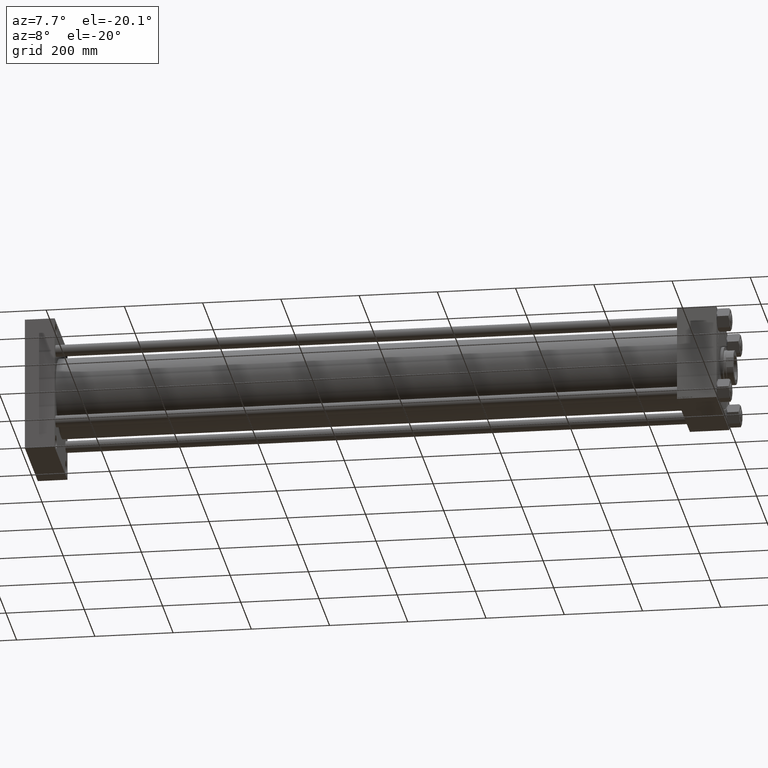
[diagram: clean part render]
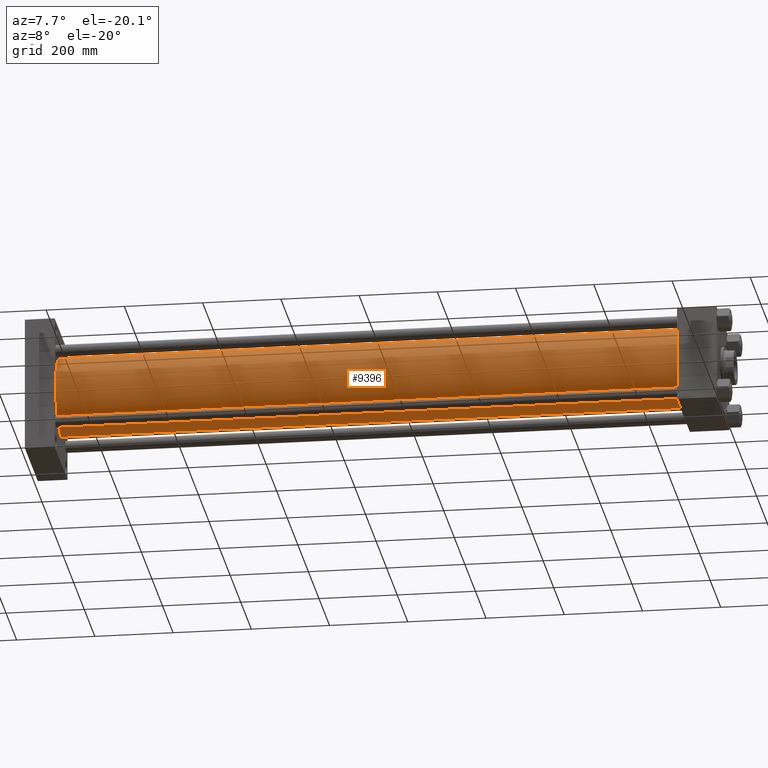
[diagram: same view with one face highlighted and labeled with its STEP entity id]
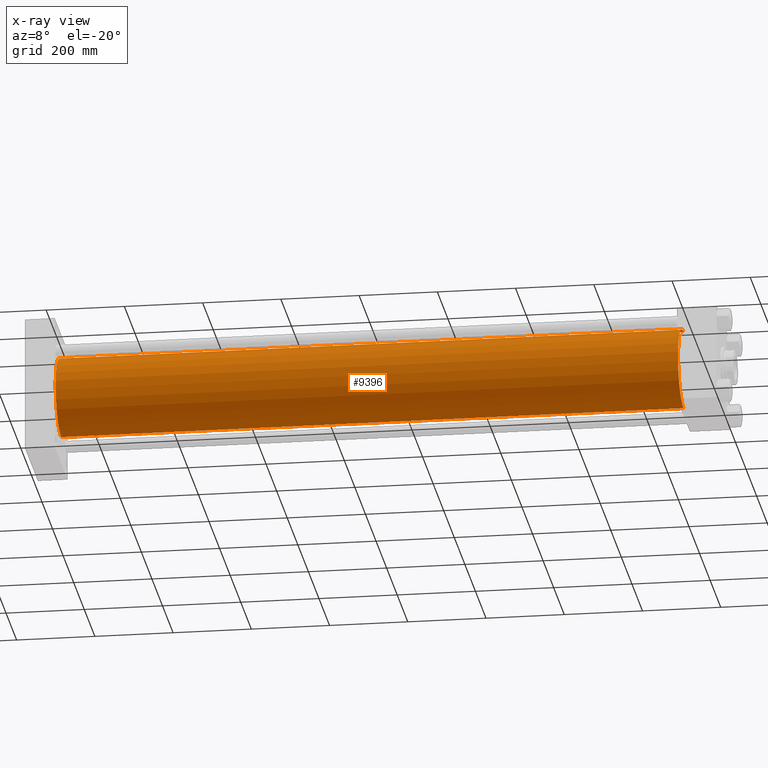
[diagram: x-ray of the same camera — body ghosted, the highlighted face saturated]
A machine part, auxiliary view. The second image highlights one B-rep face of the part: STEP entity #9396.
The next image is the same camera in x-ray: the body ghosted, the highlighted face saturated — about 0% of this face is hidden behind the body in this view.
In plain terms, the highlighted cylindrical surface (partial cylindrical patch) has radius 103 mm, axis along (-1, -0, -0).
Its self-contained STEP definition (entity closure, byte-faithful):
#1401 = CARTESIAN_POINT ( 'NONE',  ( 1667.000000000000000, 1.001177681725252697E-14, -103.0000000000000000 ) ) ;
#3063 = VERTEX_POINT ( 'NONE', #11880 ) ;
#6176 = DIRECTION ( 'NONE',  ( -1.000000000000000000, -0.000000000000000000, -0.000000000000000000 ) ) ;
#7669 = ORIENTED_EDGE ( 'NONE', *, *, #42723, .F. ) ;
#9396 = ADVANCED_FACE ( 'NONE', ( #47117 ), #13165, .T. ) ;
#9662 = DIRECTION ( 'NONE',  ( 0.000000000000000000, 0.000000000000000000, 1.000000000000000000 ) ) ;
#9920 = DIRECTION ( 'NONE',  ( 1.000000000000000000, -0.000000000000000000, 0.000000000000000000 ) ) ;
#10788 = AXIS2_PLACEMENT_3D ( 'NONE', #42346, #50266, #15284 ) ;
#11575 = ORIENTED_EDGE ( 'NONE', *, *, #18078, .F. ) ;
#11579 = CARTESIAN_POINT ( 'NONE',  ( 1667.000000000000000, -2.602085213965210642E-15, 103.0000000000000000 ) ) ;
#11880 = CARTESIAN_POINT ( 'NONE',  ( 76.00000000000007105, -2.602085213965210642E-15, 103.0000000000000000 ) ) ;
#13165 = CYLINDRICAL_SURFACE ( 'NONE', #17250, 103.0000000000000000 ) ;
#15284 = DIRECTION ( 'NONE',  ( 0.000000000000000000, 0.000000000000000000, -1.000000000000000000 ) ) ;
#17250 = AXIS2_PLACEMENT_3D ( 'NONE', #43787, #35638, #20825 ) ;
#18078 = EDGE_CURVE ( 'NONE', #41980, #43590, #33264, .T. ) ;
#18743 = LINE ( 'NONE', #11579, #31630 ) ;
#18771 = CIRCLE ( 'NONE', #29383, 103.0000000000000000 ) ;
#19004 = DIRECTION ( 'NONE',  ( -1.000000000000000000, -0.000000000000000000, -0.000000000000000000 ) ) ;
#20189 = CARTESIAN_POINT ( 'NONE',  ( 1667.000000000000000, -2.602085213965210642E-15, 103.0000000000000000 ) ) ;
#20825 = DIRECTION ( 'NONE',  ( 0.000000000000000000, 0.000000000000000000, 1.000000000000000000 ) ) ;
#22929 = VERTEX_POINT ( 'NONE', #20189 ) ;
#29244 = EDGE_CURVE ( 'NONE', #22929, #3063, #18743, .T. ) ;
#29383 = AXIS2_PLACEMENT_3D ( 'NONE', #40785, #9920, #9662 ) ;
#31630 = VECTOR ( 'NONE', #19004, 1000.000000000000000 ) ;
#32812 = CIRCLE ( 'NONE', #10788, 103.0000000000000000 ) ;
#32914 = VECTOR ( 'NONE', #6176, 1000.000000000000000 ) ;
#33264 = LINE ( 'NONE', #48577, #32914 ) ;
#34278 = EDGE_CURVE ( 'NONE', #3063, #43590, #18771, .T. ) ;
#34588 = EDGE_LOOP ( 'NONE', ( #11575, #7669, #41134, #49560 ) ) ;
#35638 = DIRECTION ( 'NONE',  ( -1.000000000000000000, -0.000000000000000000, -0.000000000000000000 ) ) ;
#40785 = CARTESIAN_POINT ( 'NONE',  ( 76.00000000000007105, -2.602085213965210642E-15, 0.000000000000000000 ) ) ;
#41134 = ORIENTED_EDGE ( 'NONE', *, *, #29244, .T. ) ;
#41863 = CARTESIAN_POINT ( 'NONE',  ( 76.00000000000007105, 1.001177681725252697E-14, -103.0000000000000000 ) ) ;
#41980 = VERTEX_POINT ( 'NONE', #1401 ) ;
#42346 = CARTESIAN_POINT ( 'NONE',  ( 1667.000000000000000, -2.602085213965210642E-15, 0.000000000000000000 ) ) ;
#42723 = EDGE_CURVE ( 'NONE', #22929, #41980, #32812, .T. ) ;
#43590 = VERTEX_POINT ( 'NONE', #41863 ) ;
#43787 = CARTESIAN_POINT ( 'NONE',  ( 1667.000000000000000, -2.602085213965210642E-15, 0.000000000000000000 ) ) ;
#47117 = FACE_OUTER_BOUND ( 'NONE', #34588, .T. ) ;
#48577 = CARTESIAN_POINT ( 'NONE',  ( 1667.000000000000000, 1.001177681725252697E-14, -103.0000000000000000 ) ) ;
#49560 = ORIENTED_EDGE ( 'NONE', *, *, #34278, .T. ) ;
#50266 = DIRECTION ( 'NONE',  ( 1.000000000000000000, 0.000000000000000000, 0.000000000000000000 ) ) ;